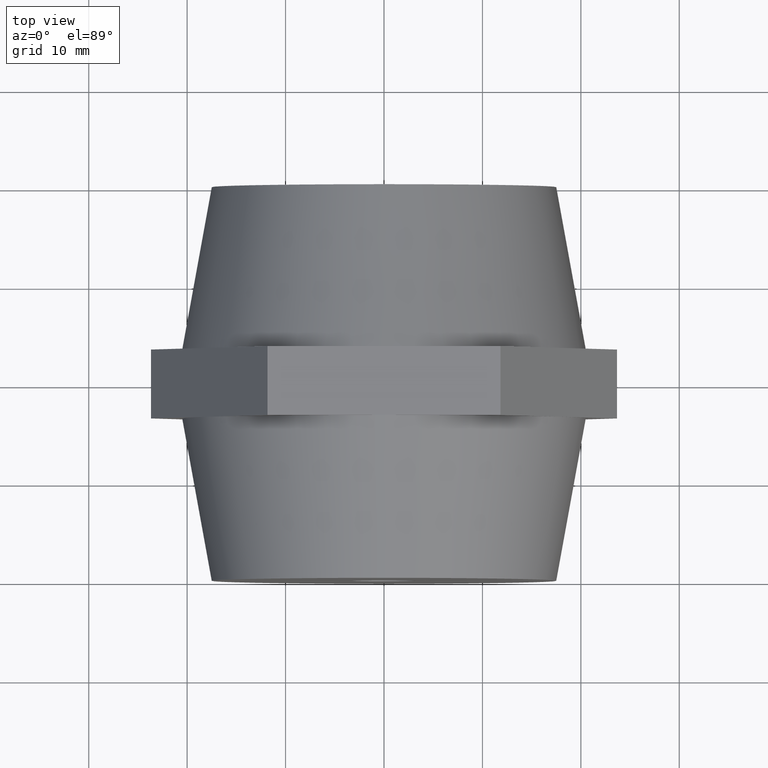
[diagram: clean part render]
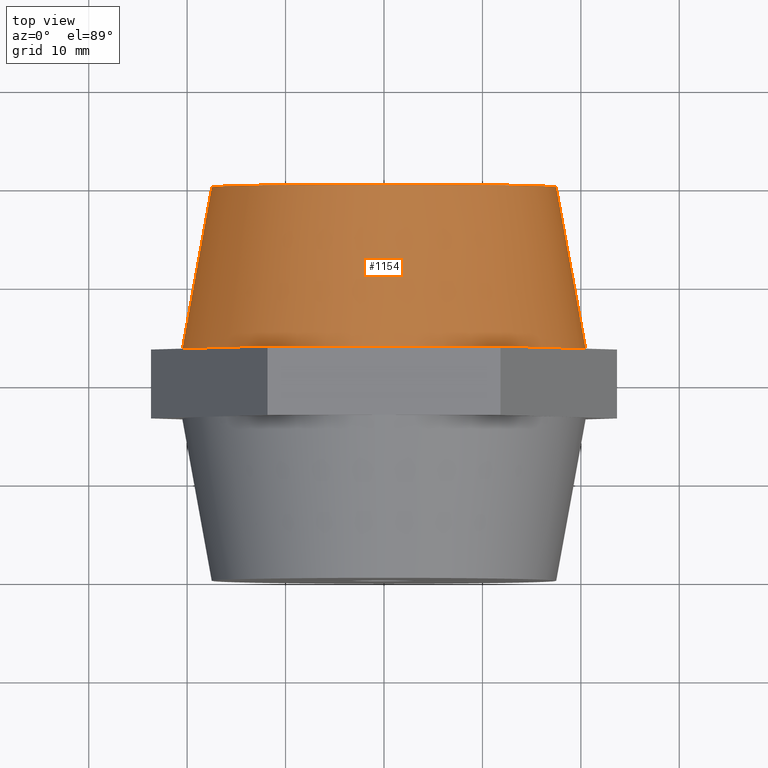
[diagram: same view with one face highlighted and labeled with its STEP entity id]
A machine part, top view. The second image highlights one B-rep face of the part: STEP entity #1154.
In plain terms, the highlighted conical surface has half-angle 10.305 deg.
Its self-contained STEP definition (entity closure, byte-faithful):
#74 = AXIS2_PLACEMENT_3D ( 'NONE', #2737, #3327, #945 ) ;
#88 = AXIS2_PLACEMENT_3D ( 'NONE', #2081, #576, #1140 ) ;
#97 = CARTESIAN_POINT ( 'NONE',  ( 17.50000000000000000, 20.00000000000000400, 0.0000000000000000000 ) ) ;
#100 = VECTOR ( 'NONE', #2400, 1000.000000000000100 ) ;
#121 = CIRCLE ( 'NONE', #2639, 20.50000000000000000 ) ;
#206 = CIRCLE ( 'NONE', #88, 20.50000000000000000 ) ;
#228 = CARTESIAN_POINT ( 'NONE',  ( -17.50000000000000000, 19.99999999999999600, 2.143131898507868200E-015 ) ) ;
#233 = ORIENTED_EDGE ( 'NONE', *, *, #3082, .T. ) ;
#307 = CARTESIAN_POINT ( 'NONE',  ( 17.50000000000000000, 20.00000000000000400, 0.0000000000000000000 ) ) ;
#312 = VERTEX_POINT ( 'NONE', #3020 ) ;
#364 = LINE ( 'NONE', #228, #843 ) ;
#377 = ORIENTED_EDGE ( 'NONE', *, *, #3804, .T. ) ;
#405 = VERTEX_POINT ( 'NONE', #3598 ) ;
#406 = EDGE_CURVE ( 'NONE', #1247, #312, #1990, .T. ) ;
#481 = VERTEX_POINT ( 'NONE', #2448 ) ;
#500 = VERTEX_POINT ( 'NONE', #3692 ) ;
#534 = CIRCLE ( 'NONE', #3638, 17.50000000000000000 ) ;
#542 = DIRECTION ( 'NONE',  ( -1.224646799147352000E-016, 1.000000000000000000, 0.0000000000000000000 ) ) ;
#561 = DIRECTION ( 'NONE',  ( -1.000000000000000000, -1.269309860470834500E-016, 0.0000000000000000000 ) ) ;
#576 = DIRECTION ( 'NONE',  ( -1.224646799147352000E-016, 1.000000000000000000, 0.0000000000000000000 ) ) ;
#586 = VERTEX_POINT ( 'NONE', #708 ) ;
#697 = ORIENTED_EDGE ( 'NONE', *, *, #1680, .T. ) ;
#708 = CARTESIAN_POINT ( 'NONE',  ( -17.75352077758099900, 3.500000000000000000, 10.25000000000000000 ) ) ;
#835 = DIRECTION ( 'NONE',  ( -1.000000000000000000, -1.269309860470834500E-016, 0.0000000000000000000 ) ) ;
#843 = VECTOR ( 'NONE', #1797, 1000.000000000000100 ) ;
#896 = EDGE_LOOP ( 'NONE', ( #1777, #233, #1823, #2287, #697, #377, #2819 ) ) ;
#914 = CARTESIAN_POINT ( 'NONE',  ( 2.020667218593134700E-015, 3.500000000000000000, 0.0000000000000000000 ) ) ;
#931 = CARTESIAN_POINT ( 'NONE',  ( -17.50000000000000000, 19.99999999999999600, 2.326828918379972200E-015 ) ) ;
#945 = DIRECTION ( 'NONE',  ( 1.000000000000000000, 1.982541115402065400E-016, 0.0000000000000000000 ) ) ;
#1031 = CONICAL_SURFACE ( 'NONE', #74, 17.50000000000000000, 0.1798534997924791400 ) ;
#1140 = DIRECTION ( 'NONE',  ( -1.000000000000000000, -1.269309860470834500E-016, 0.0000000000000000000 ) ) ;
#1150 = CARTESIAN_POINT ( 'NONE',  ( 2.020667218593134700E-015, 3.500000000000000000, 0.0000000000000000000 ) ) ;
#1154 = ADVANCED_FACE ( 'NONE', ( #1676 ), #1031, .T. ) ;
#1247 = VERTEX_POINT ( 'NONE', #97 ) ;
#1437 = DIRECTION ( 'NONE',  ( -1.224646799147352000E-016, 1.000000000000000000, 0.0000000000000000000 ) ) ;
#1525 = DIRECTION ( 'NONE',  ( -1.224646799147352000E-016, 1.000000000000000000, 0.0000000000000000000 ) ) ;
#1676 = FACE_OUTER_BOUND ( 'NONE', #896, .T. ) ;
#1680 = EDGE_CURVE ( 'NONE', #405, #481, #206, .T. ) ;
#1777 = ORIENTED_EDGE ( 'NONE', *, *, #2176, .F. ) ;
#1797 = DIRECTION ( 'NONE',  ( -0.1788854381999839300, -0.9838699100999073200, 2.190714793056821400E-017 ) ) ;
#1823 = ORIENTED_EDGE ( 'NONE', *, *, #3884, .T. ) ;
#1841 = DIRECTION ( 'NONE',  ( -1.000000000000000000, -1.269309860470834500E-016, 0.0000000000000000000 ) ) ;
#1974 = DIRECTION ( 'NONE',  ( -1.000000000000000000, -1.982541115402065400E-016, 0.0000000000000000000 ) ) ;
#1990 = LINE ( 'NONE', #307, #100 ) ;
#2081 = CARTESIAN_POINT ( 'NONE',  ( 2.020667218593134700E-015, 3.500000000000000000, 0.0000000000000000000 ) ) ;
#2176 = EDGE_CURVE ( 'NONE', #3823, #1247, #534, .T. ) ;
#2287 = ORIENTED_EDGE ( 'NONE', *, *, #3758, .T. ) ;
#2339 = CIRCLE ( 'NONE', #3112, 20.50000000000000000 ) ;
#2400 = DIRECTION ( 'NONE',  ( 0.1788854381999841500, -0.9838699100999073200, 0.0000000000000000000 ) ) ;
#2448 = CARTESIAN_POINT ( 'NONE',  ( 17.75352077758099900, 3.500000000000000000, 10.25000000000000000 ) ) ;
#2639 = AXIS2_PLACEMENT_3D ( 'NONE', #1150, #542, #835 ) ;
#2737 = CARTESIAN_POINT ( 'NONE',  ( -2.624579619658250000E-031, 20.00000000000000000, 0.0000000000000000000 ) ) ;
#2819 = ORIENTED_EDGE ( 'NONE', *, *, #406, .F. ) ;
#2852 = AXIS2_PLACEMENT_3D ( 'NONE', #2967, #3537, #561 ) ;
#2891 = CARTESIAN_POINT ( 'NONE',  ( -2.624579619658250000E-031, 20.00000000000000000, 0.0000000000000000000 ) ) ;
#2967 = CARTESIAN_POINT ( 'NONE',  ( 2.020667218593134700E-015, 3.500000000000000000, 0.0000000000000000000 ) ) ;
#3020 = CARTESIAN_POINT ( 'NONE',  ( 20.50000000000001800, 3.500000000000003600, 0.0000000000000000000 ) ) ;
#3082 = EDGE_CURVE ( 'NONE', #3823, #500, #364, .T. ) ;
#3112 = AXIS2_PLACEMENT_3D ( 'NONE', #914, #1525, #1841 ) ;
#3327 = DIRECTION ( 'NONE',  ( 1.224646799147352000E-016, -1.000000000000000000, 0.0000000000000000000 ) ) ;
#3537 = DIRECTION ( 'NONE',  ( -1.224646799147352000E-016, 1.000000000000000000, 0.0000000000000000000 ) ) ;
#3596 = CIRCLE ( 'NONE', #2852, 20.50000000000000000 ) ;
#3598 = CARTESIAN_POINT ( 'NONE',  ( -3.004629197474319600E-015, 3.500000000000000000, 20.50000000000000000 ) ) ;
#3638 = AXIS2_PLACEMENT_3D ( 'NONE', #2891, #1437, #1974 ) ;
#3692 = CARTESIAN_POINT ( 'NONE',  ( -20.50000000000001400, 3.499999999999996400, 2.510525938252076100E-015 ) ) ;
#3758 = EDGE_CURVE ( 'NONE', #586, #405, #121, .T. ) ;
#3804 = EDGE_CURVE ( 'NONE', #481, #312, #3596, .T. ) ;
#3823 = VERTEX_POINT ( 'NONE', #931 ) ;
#3884 = EDGE_CURVE ( 'NONE', #500, #586, #2339, .T. ) ;